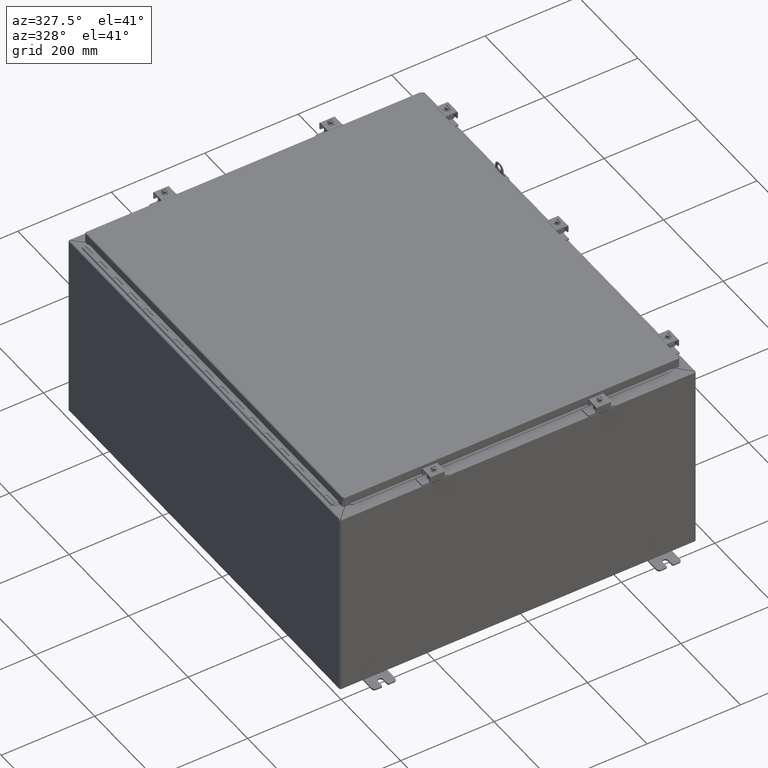
[diagram: clean part render]
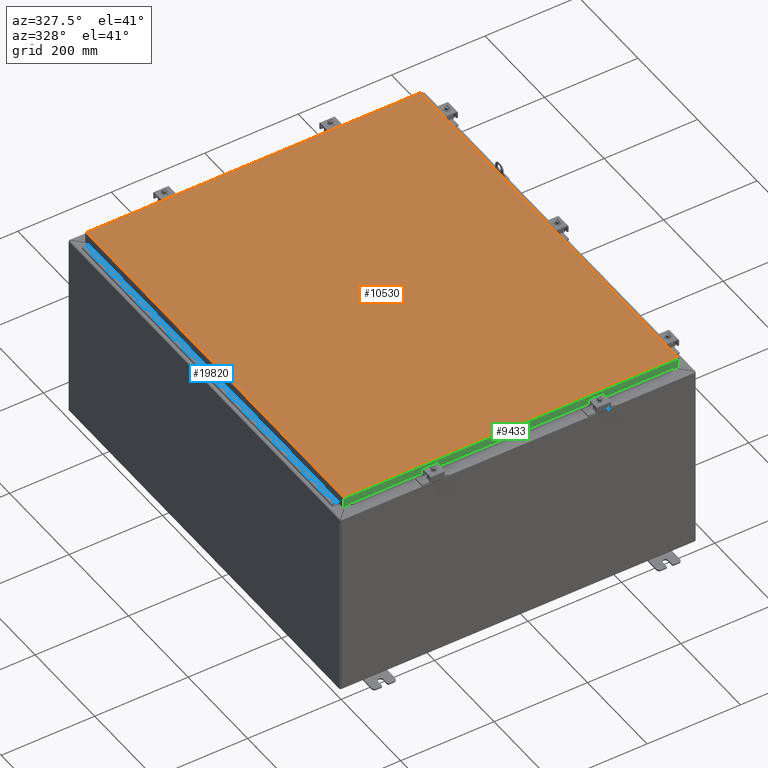
[diagram: same view with three faces highlighted in distinct colors, each labeled with its STEP entity id]
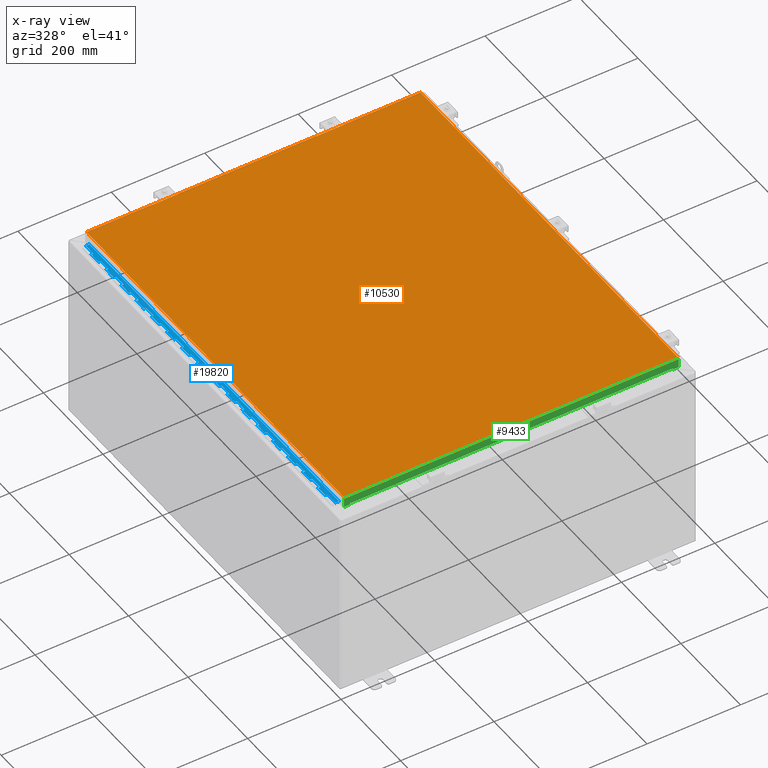
[diagram: x-ray of the same camera — body ghosted, the three highlighted faces saturated]
A machine part, auxiliary view with three faces highlighted in distinct colors.
The next image is the same camera in x-ray (body ghosted, the three faces saturated) — at least one of them is partly hidden behind the body in this view.
Their STEP definitions:

[orange] entity #10530 — the highlighted planar face has unit normal (0, 0, -1).
#9687=CARTESIAN_POINT('',(-14.08225,-16.988500000000005,-2.185478E-017));
#9688=VERTEX_POINT('',#9687);
#9699=CARTESIAN_POINT('',(14.08225,-16.988500000000002,-1.092739E-017));
#9700=VERTEX_POINT('',#9699);
#9701=CARTESIAN_POINT('',(14.08225,-16.988500000000005,0.0));
#9702=DIRECTION('',(-1.0,0.0,0.0));
#9703=VECTOR('',#9702,28.1645);
#9704=LINE('',#9701,#9703);
#9705=EDGE_CURVE('',#9700,#9688,#9704,.T.);
#9821=CARTESIAN_POINT('',(-14.082250000000005,16.988500000000005,-2.185478E-017));
#9822=VERTEX_POINT('',#9821);
#9920=CARTESIAN_POINT('',(14.08225,16.988500000000005,-1.092739E-017));
#9921=VERTEX_POINT('',#9920);
#9932=CARTESIAN_POINT('',(-14.082250000000005,16.988500000000005,0.0));
#9933=DIRECTION('',(1.0,0.0,0.0));
#9934=VECTOR('',#9933,28.164500000000004);
#9935=LINE('',#9932,#9934);
#9936=EDGE_CURVE('',#9822,#9921,#9935,.T.);
#10241=CARTESIAN_POINT('',(-14.082250000000002,-16.988500000000009,0.0));
#10242=DIRECTION('',(0.0,1.0,0.0));
#10243=VECTOR('',#10242,33.977000000000011);
#10244=LINE('',#10241,#10243);
#10245=EDGE_CURVE('',#9688,#9822,#10244,.T.);
#10335=CARTESIAN_POINT('',(14.08225,16.988500000000005,0.0));
#10336=DIRECTION('',(0.0,-1.0,0.0));
#10337=VECTOR('',#10336,33.977000000000004);
#10338=LINE('',#10335,#10337);
#10339=EDGE_CURVE('',#9921,#9700,#10338,.T.);
#10519=CARTESIAN_POINT('',(-6.993531E-016,9.772905E-016,0.0));
#10520=DIRECTION('',(0.0,0.0,1.0));
#10521=DIRECTION('',(1.0,0.0,0.0));
#10522=AXIS2_PLACEMENT_3D('',#10519,#10520,#10521);
#10523=PLANE('',#10522);
#10524=ORIENTED_EDGE('',*,*,#10245,.T.);
#10525=ORIENTED_EDGE('',*,*,#9936,.T.);
#10526=ORIENTED_EDGE('',*,*,#10339,.T.);
#10527=ORIENTED_EDGE('',*,*,#9705,.T.);
#10528=EDGE_LOOP('',(#10524,#10525,#10526,#10527));
#10529=FACE_OUTER_BOUND('',#10528,.T.);
#10530=ADVANCED_FACE('',(#10529),#10523,.F.);

[blue] entity #19820 — the highlighted planar face has unit normal (0.0872, 0, 0.9962).
#16949=CARTESIAN_POINT('',(0.0,-0.125,1.000000000000008));
#16950=VERTEX_POINT('',#16949);
#16960=CARTESIAN_POINT('',(-0.18,-0.125,1.000000000000008));
#16961=VERTEX_POINT('',#16960);
#16962=CARTESIAN_POINT('',(-0.18,-0.125,1.000000000000013));
#16963=DIRECTION('',(1.0,0.0,0.0));
#16964=VECTOR('',#16963,0.18);
#16965=LINE('',#16962,#16964);
#16966=EDGE_CURVE('',#16961,#16950,#16965,.T.);
#17026=CARTESIAN_POINT('',(-0.18,-0.125,0.0));
#17027=VERTEX_POINT('',#17026);
#17041=CARTESIAN_POINT('',(-0.18,-0.125,0.0));
#17042=DIRECTION('',(0.0,0.0,1.0));
#17043=VECTOR('',#17042,1.000000000000008);
#17044=LINE('',#17041,#17043);
#17045=EDGE_CURVE('',#17027,#16961,#17044,.T.);
#17055=CARTESIAN_POINT('',(0.0,-0.125,3.000000000000007));
#17056=VERTEX_POINT('',#17055);
#17066=CARTESIAN_POINT('',(-0.18,-0.125,3.000000000000007));
#17067=VERTEX_POINT('',#17066);
#17068=CARTESIAN_POINT('',(-0.18,-0.125,3.000000000000013));
#17069=DIRECTION('',(1.0,0.0,0.0));
#17070=VECTOR('',#17069,0.18);
#17071=LINE('',#17068,#17070);
#17072=EDGE_CURVE('',#17067,#17056,#17071,.T.);
#17139=CARTESIAN_POINT('',(-0.18,-0.125,1.980000000000012));
#17140=VERTEX_POINT('',#17139);
#17141=CARTESIAN_POINT('',(-0.18,-0.125,1.980000000000012));
#17142=DIRECTION('',(0.0,0.0,1.0));
#17143=VECTOR('',#17142,1.019999999999995);
#17144=LINE('',#17141,#17143);
#17145=EDGE_CURVE('',#17140,#17067,#17144,.T.);
#17163=CARTESIAN_POINT('',(0.0,-0.125,1.980000000000007));
#17164=VERTEX_POINT('',#17163);
#17213=CARTESIAN_POINT('',(0.0,-0.125,1.980000000000012));
#17214=DIRECTION('',(-1.0,0.0,0.0));
#17215=VECTOR('',#17214,0.18);
#17216=LINE('',#17213,#17215);
#17217=EDGE_CURVE('',#17164,#17140,#17216,.T.);
#17227=CARTESIAN_POINT('',(0.0,-0.125,5.000000000000006));
#17228=VERTEX_POINT('',#17227);
#17238=CARTESIAN_POINT('',(-0.18,-0.125,5.000000000000007));
#17239=VERTEX_POINT('',#17238);
#17240=CARTESIAN_POINT('',(-0.18,-0.125,5.000000000000012));
#17241=DIRECTION('',(1.0,0.0,0.0));
#17242=VECTOR('',#17241,0.18);
#17243=LINE('',#17240,#17242);
#17244=EDGE_CURVE('',#17239,#17228,#17243,.T.);
#17311=CARTESIAN_POINT('',(-0.18,-0.125,3.980000000000012));
#17312=VERTEX_POINT('',#17311);
#17313=CARTESIAN_POINT('',(-0.18,-0.125,3.980000000000012));
#17314=DIRECTION('',(0.0,0.0,1.0));
#17315=VECTOR('',#17314,1.019999999999995);
#17316=LINE('',#17313,#17315);
#17317=EDGE_CURVE('',#17312,#17239,#17316,.T.);
#17335=CARTESIAN_POINT('',(0.0,-0.125,3.980000000000006));
#17336=VERTEX_POINT('',#17335);
#17385=CARTESIAN_POINT('',(0.0,-0.125,3.980000000000012));
#17386=DIRECTION('',(-1.0,0.0,0.0));
#17387=VECTOR('',#17386,0.18);
#17388=LINE('',#17385,#17387);
#17389=EDGE_CURVE('',#17336,#17312,#17388,.T.);
#17399=CARTESIAN_POINT('',(0.0,-0.125,7.000000000000006));
#17400=VERTEX_POINT('',#17399);
#17410=CARTESIAN_POINT('',(-0.18,-0.125,7.000000000000006));
#17411=VERTEX_POINT('',#17410);
#17412=CARTESIAN_POINT('',(-0.18,-0.125,7.000000000000012));
#17413=DIRECTION('',(1.0,0.0,0.0));
#17414=VECTOR('',#17413,0.18);
#17415=LINE('',#17412,#17414);
#17416=EDGE_CURVE('',#17411,#17400,#17415,.T.);
#17483=CARTESIAN_POINT('',(-0.18,-0.125,5.980000000000011));
#17484=VERTEX_POINT('',#17483);
#17485=CARTESIAN_POINT('',(-0.18,-0.125,5.980000000000011));
#17486=DIRECTION('',(0.0,0.0,1.0));
#17487=VECTOR('',#17486,1.019999999999995);
#17488=LINE('',#17485,#17487);
#17489=EDGE_CURVE('',#17484,#17411,#17488,.T.);
#17507=CARTESIAN_POINT('',(0.0,-0.125,5.980000000000006));
#17508=VERTEX_POINT('',#17507);
#17557=CARTESIAN_POINT('',(0.0,-0.125,5.980000000000011));
#17558=DIRECTION('',(-1.0,0.0,0.0));
#17559=VECTOR('',#17558,0.18);
#17560=LINE('',#17557,#17559);
#17561=EDGE_CURVE('',#17508,#17484,#17560,.T.);
#17571=CARTESIAN_POINT('',(0.0,-0.125,9.000000000000005));
#17572=VERTEX_POINT('',#17571);
#17582=CARTESIAN_POINT('',(-0.18,-0.125,9.000000000000005));
#17583=VERTEX_POINT('',#17582);
#17584=CARTESIAN_POINT('',(-0.18,-0.125,9.000000000000011));
#17585=DIRECTION('',(1.0,0.0,0.0));
#17586=VECTOR('',#17585,0.18);
#17587=LINE('',#17584,#17586);
#17588=EDGE_CURVE('',#17583,#17572,#17587,.T.);
#17655=CARTESIAN_POINT('',(-0.18,-0.125,7.980000000000011));
#17656=VERTEX_POINT('',#17655);
#17657=CARTESIAN_POINT('',(-0.18,-0.125,7.980000000000011));
#17658=DIRECTION('',(0.0,0.0,1.0));
#17659=VECTOR('',#17658,1.019999999999994);
#17660=LINE('',#17657,#17659);
#17661=EDGE_CURVE('',#17656,#17583,#17660,.T.);
#17679=CARTESIAN_POINT('',(0.0,-0.125,7.980000000000005));
#17680=VERTEX_POINT('',#17679);
#17729=CARTESIAN_POINT('',(0.0,-0.125,7.980000000000011));
#17730=DIRECTION('',(-1.0,0.0,0.0));
#17731=VECTOR('',#17730,0.18);
#17732=LINE('',#17729,#17731);
#17733=EDGE_CURVE('',#17680,#17656,#17732,.T.);
#17743=CARTESIAN_POINT('',(0.0,-0.125,11.000000000000009));
#17744=VERTEX_POINT('',#17743);
#17754=CARTESIAN_POINT('',(-0.18,-0.125,11.000000000000009));
#17755=VERTEX_POINT('',#17754);
#17756=CARTESIAN_POINT('',(-0.18,-0.125,11.000000000000014));
#17757=DIRECTION('',(1.0,0.0,0.0));
#17758=VECTOR('',#17757,0.18);
#17759=LINE('',#17756,#17758);
#17760=EDGE_CURVE('',#17755,#17744,#17759,.T.);
#17827=CARTESIAN_POINT('',(-0.18,-0.125,9.980000000000013));
#17828=VERTEX_POINT('',#17827);
#17829=CARTESIAN_POINT('',(-0.18,-0.125,9.980000000000015));
#17830=DIRECTION('',(0.0,0.0,1.0));
#17831=VECTOR('',#17830,1.019999999999994);
#17832=LINE('',#17829,#17831);
#17833=EDGE_CURVE('',#17828,#17755,#17832,.T.);
#17851=CARTESIAN_POINT('',(0.0,-0.125,9.980000000000009));
#17852=VERTEX_POINT('',#17851);
#17901=CARTESIAN_POINT('',(0.0,-0.125,9.980000000000013));
#17902=DIRECTION('',(-1.0,0.0,0.0));
#17903=VECTOR('',#17902,0.18);
#17904=LINE('',#17901,#17903);
#17905=EDGE_CURVE('',#17852,#17828,#17904,.T.);
#17915=CARTESIAN_POINT('',(0.0,-0.125,13.000000000000007));
#17916=VERTEX_POINT('',#17915);
#17926=CARTESIAN_POINT('',(-0.18,-0.125,13.000000000000007));
#17927=VERTEX_POINT('',#17926);
#17928=CARTESIAN_POINT('',(-0.18,-0.125,13.000000000000012));
#17929=DIRECTION('',(1.0,0.0,0.0));
#17930=VECTOR('',#17929,0.18);
#17931=LINE('',#17928,#17930);
#17932=EDGE_CURVE('',#17927,#17916,#17931,.T.);
#17999=CARTESIAN_POINT('',(-0.18,-0.125,11.980000000000013));
#18000=VERTEX_POINT('',#17999);
#18001=CARTESIAN_POINT('',(-0.18,-0.125,11.980000000000011));
#18002=DIRECTION('',(0.0,0.0,1.0));
#18003=VECTOR('',#18002,1.019999999999996);
#18004=LINE('',#18001,#18003);
#18005=EDGE_CURVE('',#18000,#17927,#18004,.T.);
#18023=CARTESIAN_POINT('',(0.0,-0.125,11.980000000000008));
#18024=VERTEX_POINT('',#18023);
#18073=CARTESIAN_POINT('',(0.0,-0.125,11.980000000000013));
#18074=DIRECTION('',(-1.0,0.0,0.0));
#18075=VECTOR('',#18074,0.18);
#18076=LINE('',#18073,#18075);
#18077=EDGE_CURVE('',#18024,#18000,#18076,.T.);
#18087=CARTESIAN_POINT('',(0.0,-0.125,15.000000000000007));
#18088=VERTEX_POINT('',#18087);
#18098=CARTESIAN_POINT('',(-0.18,-0.125,15.000000000000007));
#18099=VERTEX_POINT('',#18098);
#18100=CARTESIAN_POINT('',(-0.18,-0.125,15.000000000000012));
#18101=DIRECTION('',(1.0,0.0,0.0));
#18102=VECTOR('',#18101,0.18);
#18103=LINE('',#18100,#18102);
#18104=EDGE_CURVE('',#18099,#18088,#18103,.T.);
#18171=CARTESIAN_POINT('',(-0.18,-0.125,13.980000000000011));
#18172=VERTEX_POINT('',#18171);
#18173=CARTESIAN_POINT('',(-0.18,-0.125,13.980000000000011));
#18174=DIRECTION('',(0.0,0.0,1.0));
#18175=VECTOR('',#18174,1.019999999999996);
#18176=LINE('',#18173,#18175);
#18177=EDGE_CURVE('',#18172,#18099,#18176,.T.);
#18195=CARTESIAN_POINT('',(0.0,-0.125,13.980000000000006));
#18196=VERTEX_POINT('',#18195);
#18245=CARTESIAN_POINT('',(0.0,-0.125,13.980000000000011));
#18246=DIRECTION('',(-1.0,0.0,0.0));
#18247=VECTOR('',#18246,0.18);
#18248=LINE('',#18245,#18247);
#18249=EDGE_CURVE('',#18196,#18172,#18248,.T.);
#18259=CARTESIAN_POINT('',(0.0,-0.125,17.000000000000007));
#18260=VERTEX_POINT('',#18259);
#18270=CARTESIAN_POINT('',(-0.18,-0.125,17.000000000000007));
#18271=VERTEX_POINT('',#18270);
#18272=CARTESIAN_POINT('',(-0.18,-0.125,17.000000000000011));
#18273=DIRECTION('',(1.0,0.0,0.0));
#18274=VECTOR('',#18273,0.18);
#18275=LINE('',#18272,#18274);
#18276=EDGE_CURVE('',#18271,#18260,#18275,.T.);
#18343=CARTESIAN_POINT('',(-0.18,-0.125,15.980000000000011));
#18344=VERTEX_POINT('',#18343);
#18345=CARTESIAN_POINT('',(-0.18,-0.125,15.980000000000011));
#18346=DIRECTION('',(0.0,0.0,1.0));
#18347=VECTOR('',#18346,1.019999999999996);
#18348=LINE('',#18345,#18347);
#18349=EDGE_CURVE('',#18344,#18271,#18348,.T.);
#18367=CARTESIAN_POINT('',(0.0,-0.125,15.980000000000006));
#18368=VERTEX_POINT('',#18367);
#18417=CARTESIAN_POINT('',(-6.162976E-033,-0.125,15.980000000000011));
#18418=DIRECTION('',(-1.0,0.0,0.0));
#18419=VECTOR('',#18418,0.18);
#18420=LINE('',#18417,#18419);
#18421=EDGE_CURVE('',#18368,#18344,#18420,.T.);
#18431=CARTESIAN_POINT('',(0.0,-0.125,19.000000000000007));
#18432=VERTEX_POINT('',#18431);
#18442=CARTESIAN_POINT('',(-0.18,-0.125,19.000000000000007));
#18443=VERTEX_POINT('',#18442);
#18444=CARTESIAN_POINT('',(-0.18,-0.125,19.000000000000011));
#18445=DIRECTION('',(1.0,0.0,0.0));
#18446=VECTOR('',#18445,0.18);
#18447=LINE('',#18444,#18446);
#18448=EDGE_CURVE('',#18443,#18432,#18447,.T.);
#18515=CARTESIAN_POINT('',(-0.18,-0.125,17.980000000000011));
#18516=VERTEX_POINT('',#18515);
#18517=CARTESIAN_POINT('',(-0.18,-0.125,17.980000000000011));
#18518=DIRECTION('',(0.0,0.0,1.0));
#18519=VECTOR('',#18518,1.019999999999996);
#18520=LINE('',#18517,#18519);
#18521=EDGE_CURVE('',#18516,#18443,#18520,.T.);
#18539=CARTESIAN_POINT('',(0.0,-0.125,17.980000000000004));
#18540=VERTEX_POINT('',#18539);
#18589=CARTESIAN_POINT('',(-3.081488E-033,-0.125,17.980000000000011));
#18590=DIRECTION('',(-1.0,0.0,0.0));
#18591=VECTOR('',#18590,0.18);
#18592=LINE('',#18589,#18591);
#18593=EDGE_CURVE('',#18540,#18516,#18592,.T.);
#18603=CARTESIAN_POINT('',(0.0,-0.125,21.000000000000007));
#18604=VERTEX_POINT('',#18603);
#18614=CARTESIAN_POINT('',(-0.18,-0.125,21.000000000000007));
#18615=VERTEX_POINT('',#18614);
#18616=CARTESIAN_POINT('',(-0.18,-0.125,21.000000000000011));
#18617=DIRECTION('',(1.0,0.0,0.0));
#18618=VECTOR('',#18617,0.18);
#18619=LINE('',#18616,#18618);
#18620=EDGE_CURVE('',#18615,#18604,#18619,.T.);
#18687=CARTESIAN_POINT('',(-0.18,-0.125,19.980000000000011));
#18688=VERTEX_POINT('',#18687);
#18689=CARTESIAN_POINT('',(-0.18,-0.125,19.980000000000011));
#18690=DIRECTION('',(0.0,0.0,1.0));
#18691=VECTOR('',#18690,1.019999999999996);
#18692=LINE('',#18689,#18691);
#18693=EDGE_CURVE('',#18688,#18615,#18692,.T.);
#18711=CARTESIAN_POINT('',(0.0,-0.125,19.980000000000004));
#18712=VERTEX_POINT('',#18711);
#18761=CARTESIAN_POINT('',(-3.081488E-033,-0.125,19.980000000000011));
#18762=DIRECTION('',(-1.0,0.0,0.0));
#18763=VECTOR('',#18762,0.18);
#18764=LINE('',#18761,#18763);
#18765=EDGE_CURVE('',#18712,#18688,#18764,.T.);
#18775=CARTESIAN_POINT('',(0.0,-0.125,23.000000000000007));
#18776=VERTEX_POINT('',#18775);
#18786=CARTESIAN_POINT('',(-0.18,-0.125,23.000000000000007));
#18787=VERTEX_POINT('',#18786);
#18788=CARTESIAN_POINT('',(-0.18,-0.125,23.000000000000014));
#18789=DIRECTION('',(1.0,0.0,0.0));
#18790=VECTOR('',#18789,0.18);
#18791=LINE('',#18788,#18790);
#18792=EDGE_CURVE('',#18787,#18776,#18791,.T.);
#18859=CARTESIAN_POINT('',(-0.18,-0.125,21.980000000000011));
#18860=VERTEX_POINT('',#18859);
#18861=CARTESIAN_POINT('',(-0.18,-0.125,21.980000000000011));
#18862=DIRECTION('',(0.0,0.0,1.0));
#18863=VECTOR('',#18862,1.019999999999996);
#18864=LINE('',#18861,#18863);
#18865=EDGE_CURVE('',#18860,#18787,#18864,.T.);
#18883=CARTESIAN_POINT('',(0.0,-0.125,21.980000000000004));
#18884=VERTEX_POINT('',#18883);
#18933=CARTESIAN_POINT('',(-6.162976E-033,-0.125,21.980000000000011));
#18934=DIRECTION('',(-1.0,0.0,0.0));
#18935=VECTOR('',#18934,0.18);
#18936=LINE('',#18933,#18935);
#18937=EDGE_CURVE('',#18884,#18860,#18936,.T.);
#18947=CARTESIAN_POINT('',(0.0,-0.125,25.000000000000007));
#18948=VERTEX_POINT('',#18947);
#18958=CARTESIAN_POINT('',(-0.18,-0.125,25.000000000000007));
#18959=VERTEX_POINT('',#18958);
#18960=CARTESIAN_POINT('',(-0.18,-0.125,25.000000000000014));
#18961=DIRECTION('',(1.0,0.0,0.0));
#18962=VECTOR('',#18961,0.18);
#18963=LINE('',#18960,#18962);
#18964=EDGE_CURVE('',#18959,#18948,#18963,.T.);
#19031=CARTESIAN_POINT('',(-0.18,-0.125,23.980000000000011));
#19032=VERTEX_POINT('',#19031);
#19033=CARTESIAN_POINT('',(-0.18,-0.125,23.980000000000011));
#19034=DIRECTION('',(0.0,0.0,1.0));
#19035=VECTOR('',#19034,1.019999999999996);
#19036=LINE('',#19033,#19035);
#19037=EDGE_CURVE('',#19032,#18959,#19036,.T.);
#19055=CARTESIAN_POINT('',(0.0,-0.125,23.980000000000008));
#19056=VERTEX_POINT('',#19055);
#19105=CARTESIAN_POINT('',(-6.162976E-033,-0.125,23.980000000000011));
#19106=DIRECTION('',(-1.0,0.0,0.0));
#19107=VECTOR('',#19106,0.18);
#19108=LINE('',#19105,#19107);
#19109=EDGE_CURVE('',#19056,#19032,#19108,.T.);
#19119=CARTESIAN_POINT('',(0.0,-0.125,27.000000000000007));
#19120=VERTEX_POINT('',#19119);
#19130=CARTESIAN_POINT('',(-0.18,-0.125,27.000000000000007));
#19131=VERTEX_POINT('',#19130);
#19132=CARTESIAN_POINT('',(-0.18,-0.125,27.000000000000011));
#19133=DIRECTION('',(1.0,0.0,0.0));
#19134=VECTOR('',#19133,0.18);
#19135=LINE('',#19132,#19134);
#19136=EDGE_CURVE('',#19131,#19120,#19135,.T.);
#19203=CARTESIAN_POINT('',(-0.18,-0.125,25.980000000000011));
#19204=VERTEX_POINT('',#19203);
#19205=CARTESIAN_POINT('',(-0.18,-0.125,25.980000000000011));
#19206=DIRECTION('',(0.0,0.0,1.0));
#19207=VECTOR('',#19206,1.019999999999996);
#19208=LINE('',#19205,#19207);
#19209=EDGE_CURVE('',#19204,#19131,#19208,.T.);
#19227=CARTESIAN_POINT('',(0.0,-0.125,25.980000000000008));
#19228=VERTEX_POINT('',#19227);
#19277=CARTESIAN_POINT('',(-3.081488E-033,-0.125,25.980000000000011));
#19278=DIRECTION('',(-1.0,0.0,0.0));
#19279=VECTOR('',#19278,0.18);
#19280=LINE('',#19277,#19279);
#19281=EDGE_CURVE('',#19228,#19204,#19280,.T.);
#19291=CARTESIAN_POINT('',(0.0,-0.125,29.000000000000007));
#19292=VERTEX_POINT('',#19291);
#19302=CARTESIAN_POINT('',(-0.18,-0.125,29.000000000000007));
#19303=VERTEX_POINT('',#19302);
#19304=CARTESIAN_POINT('',(-0.18,-0.125,29.000000000000011));
#19305=DIRECTION('',(1.0,0.0,0.0));
#19306=VECTOR('',#19305,0.18);
#19307=LINE('',#19304,#19306);
#19308=EDGE_CURVE('',#19303,#19292,#19307,.T.);
#19375=CARTESIAN_POINT('',(-0.18,-0.125,27.980000000000011));
#19376=VERTEX_POINT('',#19375);
#19377=CARTESIAN_POINT('',(-0.18,-0.125,27.980000000000011));
#19378=DIRECTION('',(0.0,0.0,1.0));
#19379=VECTOR('',#19378,1.019999999999996);
#19380=LINE('',#19377,#19379);
#19381=EDGE_CURVE('',#19376,#19303,#19380,.T.);
#19399=CARTESIAN_POINT('',(0.0,-0.125,27.980000000000004));
#19400=VERTEX_POINT('',#19399);
#19449=CARTESIAN_POINT('',(-6.162976E-033,-0.125,27.980000000000011));
#19450=DIRECTION('',(-1.0,0.0,0.0));
#19451=VECTOR('',#19450,0.18);
#19452=LINE('',#19449,#19451);
#19453=EDGE_CURVE('',#19400,#19376,#19452,.T.);
#19463=CARTESIAN_POINT('',(0.0,-0.125,31.000000000000007));
#19464=VERTEX_POINT('',#19463);
#19474=CARTESIAN_POINT('',(-0.18,-0.125,31.000000000000007));
#19475=VERTEX_POINT('',#19474);
#19476=CARTESIAN_POINT('',(-0.18,-0.125,31.000000000000011));
#19477=DIRECTION('',(1.0,0.0,0.0));
#19478=VECTOR('',#19477,0.18);
#19479=LINE('',#19476,#19478);
#19480=EDGE_CURVE('',#19475,#19464,#19479,.T.);
#19547=CARTESIAN_POINT('',(-0.18,-0.125,29.980000000000011));
#19548=VERTEX_POINT('',#19547);
#19549=CARTESIAN_POINT('',(-0.18,-0.125,29.980000000000011));
#19550=DIRECTION('',(0.0,0.0,1.0));
#19551=VECTOR('',#19550,1.019999999999996);
#19552=LINE('',#19549,#19551);
#19553=EDGE_CURVE('',#19548,#19475,#19552,.T.);
#19571=CARTESIAN_POINT('',(0.0,-0.125,29.980000000000004));
#19572=VERTEX_POINT('',#19571);
#19621=CARTESIAN_POINT('',(-3.081488E-033,-0.125,29.980000000000011));
#19622=DIRECTION('',(-1.0,0.0,0.0));
#19623=VECTOR('',#19622,0.18);
#19624=LINE('',#19621,#19623);
#19625=EDGE_CURVE('',#19572,#19548,#19624,.T.);
#19630=CARTESIAN_POINT('',(1.530808E-017,-0.125,0.0));
#19631=DIRECTION('',(0.0,-1.0,0.0));
#19632=DIRECTION('',(0.0,0.0,-1.0));
#19633=AXIS2_PLACEMENT_3D('',#19630,#19631,#19632);
#19634=PLANE('',#19633);
#19635=ORIENTED_EDGE('',*,*,#17045,.T.);
#19636=ORIENTED_EDGE('',*,*,#16966,.T.);
#19637=CARTESIAN_POINT('',(1.530808E-017,-0.125,1.000000000000008));
#19638=DIRECTION('',(0.0,0.0,1.0));
#19639=VECTOR('',#19638,0.979999999999999);
#19640=LINE('',#19637,#19639);
#19641=EDGE_CURVE('',#16950,#17164,#19640,.T.);
#19642=ORIENTED_EDGE('',*,*,#19641,.T.);
#19643=ORIENTED_EDGE('',*,*,#17217,.T.);
#19644=ORIENTED_EDGE('',*,*,#17145,.T.);
#19645=ORIENTED_EDGE('',*,*,#17072,.T.);
#19646=CARTESIAN_POINT('',(1.530808E-017,-0.125,3.000000000000007));
#19647=DIRECTION('',(0.0,0.0,1.0));
#19648=VECTOR('',#19647,0.979999999999999);
#19649=LINE('',#19646,#19648);
#19650=EDGE_CURVE('',#17056,#17336,#19649,.T.);
#19651=ORIENTED_EDGE('',*,*,#19650,.T.);
#19652=ORIENTED_EDGE('',*,*,#17389,.T.);
#19653=ORIENTED_EDGE('',*,*,#17317,.T.);
#19654=ORIENTED_EDGE('',*,*,#17244,.T.);
#19655=CARTESIAN_POINT('',(1.530808E-017,-0.125,5.000000000000006));
#19656=DIRECTION('',(0.0,0.0,1.0));
#19657=VECTOR('',#19656,0.98);
#19658=LINE('',#19655,#19657);
#19659=EDGE_CURVE('',#17228,#17508,#19658,.T.);
#19660=ORIENTED_EDGE('',*,*,#19659,.T.);
#19661=ORIENTED_EDGE('',*,*,#17561,.T.);
#19662=ORIENTED_EDGE('',*,*,#17489,.T.);
#19663=ORIENTED_EDGE('',*,*,#17416,.T.);
#19664=CARTESIAN_POINT('',(1.530808E-017,-0.125,7.000000000000006));
#19665=DIRECTION('',(0.0,0.0,1.0));
#19666=VECTOR('',#19665,0.979999999999999);
#19667=LINE('',#19664,#19666);
#19668=EDGE_CURVE('',#17400,#17680,#19667,.T.);
#19669=ORIENTED_EDGE('',*,*,#19668,.T.);
#19670=ORIENTED_EDGE('',*,*,#17733,.T.);
#19671=ORIENTED_EDGE('',*,*,#17661,.T.);
#19672=ORIENTED_EDGE('',*,*,#17588,.T.);
#19673=CARTESIAN_POINT('',(1.530808E-017,-0.125,9.000000000000005));
#19674=DIRECTION('',(0.0,0.0,1.0));
#19675=VECTOR('',#19674,0.980000000000004);
#19676=LINE('',#19673,#19675);
#19677=EDGE_CURVE('',#17572,#17852,#19676,.T.);
#19678=ORIENTED_EDGE('',*,*,#19677,.T.);
#19679=ORIENTED_EDGE('',*,*,#17905,.T.);
#19680=ORIENTED_EDGE('',*,*,#17833,.T.);
#19681=ORIENTED_EDGE('',*,*,#17760,.T.);
#19682=CARTESIAN_POINT('',(1.530808E-017,-0.125,11.000000000000009));
#19683=DIRECTION('',(0.0,0.0,1.0));
#19684=VECTOR('',#19683,0.979999999999999);
#19685=LINE('',#19682,#19684);
#19686=EDGE_CURVE('',#17744,#18024,#19685,.T.);
#19687=ORIENTED_EDGE('',*,*,#19686,.T.);
#19688=ORIENTED_EDGE('',*,*,#18077,.T.);
#19689=ORIENTED_EDGE('',*,*,#18005,.T.);
#19690=ORIENTED_EDGE('',*,*,#17932,.T.);
#19691=CARTESIAN_POINT('',(1.530808E-017,-0.125,13.000000000000007));
#19692=DIRECTION('',(0.0,0.0,1.0));
#19693=VECTOR('',#19692,0.979999999999999);
#19694=LINE('',#19691,#19693);
#19695=EDGE_CURVE('',#17916,#18196,#19694,.T.);
#19696=ORIENTED_EDGE('',*,*,#19695,.T.);
#19697=ORIENTED_EDGE('',*,*,#18249,.T.);
#19698=ORIENTED_EDGE('',*,*,#18177,.T.);
#19699=ORIENTED_EDGE('',*,*,#18104,.T.);
#19700=CARTESIAN_POINT('',(1.530808E-017,-0.125,15.000000000000007));
#19701=DIRECTION('',(0.0,0.0,1.0));
#19702=VECTOR('',#19701,0.979999999999999);
#19703=LINE('',#19700,#19702);
#19704=EDGE_CURVE('',#18088,#18368,#19703,.T.);
#19705=ORIENTED_EDGE('',*,*,#19704,.T.);
#19706=ORIENTED_EDGE('',*,*,#18421,.T.);
#19707=ORIENTED_EDGE('',*,*,#18349,.T.);
#19708=ORIENTED_EDGE('',*,*,#18276,.T.);
#19709=CARTESIAN_POINT('',(1.530808E-017,-0.125,17.000000000000007));
#19710=DIRECTION('',(0.0,0.0,1.0));
#19711=VECTOR('',#19710,0.979999999999997);
#19712=LINE('',#19709,#19711);
#19713=EDGE_CURVE('',#18260,#18540,#19712,.T.);
#19714=ORIENTED_EDGE('',*,*,#19713,.T.);
#19715=ORIENTED_EDGE('',*,*,#18593,.T.);
#19716=ORIENTED_EDGE('',*,*,#18521,.T.);
#19717=ORIENTED_EDGE('',*,*,#18448,.T.);
#19718=CARTESIAN_POINT('',(1.530808E-017,-0.125,19.000000000000007));
#19719=DIRECTION('',(0.0,0.0,1.0));
#19720=VECTOR('',#19719,0.979999999999997);
#19721=LINE('',#19718,#19720);
#19722=EDGE_CURVE('',#18432,#18712,#19721,.T.);
#19723=ORIENTED_EDGE('',*,*,#19722,.T.);
#19724=ORIENTED_EDGE('',*,*,#18765,.T.);
#19725=ORIENTED_EDGE('',*,*,#18693,.T.);
#19726=ORIENTED_EDGE('',*,*,#18620,.T.);
#19727=CARTESIAN_POINT('',(1.530808E-017,-0.125,21.000000000000007));
#19728=DIRECTION('',(0.0,0.0,1.0));
#19729=VECTOR('',#19728,0.979999999999997);
#19730=LINE('',#19727,#19729);
#19731=EDGE_CURVE('',#18604,#18884,#19730,.T.);
#19732=ORIENTED_EDGE('',*,*,#19731,.T.);
#19733=ORIENTED_EDGE('',*,*,#18937,.T.);
#19734=ORIENTED_EDGE('',*,*,#18865,.T.);
#19735=ORIENTED_EDGE('',*,*,#18792,.T.);
#19736=CARTESIAN_POINT('',(1.530808E-017,-0.125,23.000000000000007));
#19737=DIRECTION('',(0.0,0.0,1.0));
#19738=VECTOR('',#19737,0.98);
#19739=LINE('',#19736,#19738);
#19740=EDGE_CURVE('',#18776,#19056,#19739,.T.);
#19741=ORIENTED_EDGE('',*,*,#19740,.T.);
#19742=ORIENTED_EDGE('',*,*,#19109,.T.);
#19743=ORIENTED_EDGE('',*,*,#19037,.T.);
#19744=ORIENTED_EDGE('',*,*,#18964,.T.);
#19745=CARTESIAN_POINT('',(1.530808E-017,-0.125,25.000000000000007));
#19746=DIRECTION('',(0.0,0.0,1.0));
#19747=VECTOR('',#19746,0.98);
#19748=LINE('',#19745,#19747);
#19749=EDGE_CURVE('',#18948,#19228,#19748,.T.);
#19750=ORIENTED_EDGE('',*,*,#19749,.T.);
#19751=ORIENTED_EDGE('',*,*,#19281,.T.);
#19752=ORIENTED_EDGE('',*,*,#19209,.T.);
#19753=ORIENTED_EDGE('',*,*,#19136,.T.);
#19754=CARTESIAN_POINT('',(1.530808E-017,-0.125,27.000000000000007));
#19755=DIRECTION('',(0.0,0.0,1.0));
#19756=VECTOR('',#19755,0.979999999999997);
#19757=LINE('',#19754,#19756);
#19758=EDGE_CURVE('',#19120,#19400,#19757,.T.);
#19759=ORIENTED_EDGE('',*,*,#19758,.T.);
#19760=ORIENTED_EDGE('',*,*,#19453,.T.);
#19761=ORIENTED_EDGE('',*,*,#19381,.T.);
#19762=ORIENTED_EDGE('',*,*,#19308,.T.);
#19763=CARTESIAN_POINT('',(1.530808E-017,-0.125,29.000000000000007));
#19764=DIRECTION('',(0.0,0.0,1.0));
#19765=VECTOR('',#19764,0.979999999999997);
#19766=LINE('',#19763,#19765);
#19767=EDGE_CURVE('',#19292,#19572,#19766,.T.);
#19768=ORIENTED_EDGE('',*,*,#19767,.T.);
#19769=ORIENTED_EDGE('',*,*,#19625,.T.);
#19770=ORIENTED_EDGE('',*,*,#19553,.T.);
#19771=ORIENTED_EDGE('',*,*,#19480,.T.);
#19772=CARTESIAN_POINT('',(0.0,-0.125,31.980000000000004));
#19773=VERTEX_POINT('',#19772);
#19774=CARTESIAN_POINT('',(1.530808E-017,-0.125,31.000000000000007));
#19775=DIRECTION('',(0.0,0.0,1.0));
#19776=VECTOR('',#19775,0.979999999999997);
#19777=LINE('',#19774,#19776);
#19778=EDGE_CURVE('',#19464,#19773,#19777,.T.);
#19779=ORIENTED_EDGE('',*,*,#19778,.T.);
#19780=CARTESIAN_POINT('',(-0.18,-0.125,31.980000000000011));
#19781=VERTEX_POINT('',#19780);
#19782=CARTESIAN_POINT('',(-6.162976E-033,-0.125,31.980000000000011));
#19783=DIRECTION('',(-1.0,0.0,0.0));
#19784=VECTOR('',#19783,0.18);
#19785=LINE('',#19782,#19784);
#19786=EDGE_CURVE('',#19773,#19781,#19785,.T.);
#19787=ORIENTED_EDGE('',*,*,#19786,.T.);
#19788=CARTESIAN_POINT('',(-0.18,-0.125,33.000000000000007));
#19789=VERTEX_POINT('',#19788);
#19790=CARTESIAN_POINT('',(-0.18,-0.125,31.980000000000011));
#19791=DIRECTION('',(0.0,0.0,1.0));
#19792=VECTOR('',#19791,1.019999999999996);
#19793=LINE('',#19790,#19792);
#19794=EDGE_CURVE('',#19781,#19789,#19793,.T.);
#19795=ORIENTED_EDGE('',*,*,#19794,.T.);
#19796=CARTESIAN_POINT('',(-0.511005076730884,-0.125,33.000000000000007));
#19797=VERTEX_POINT('',#19796);
#19798=CARTESIAN_POINT('',(-0.18,-0.125,33.000000000000007));
#19799=DIRECTION('',(-1.0,0.0,0.0));
#19800=VECTOR('',#19799,0.331005076730884);
#19801=LINE('',#19798,#19800);
#19802=EDGE_CURVE('',#19789,#19797,#19801,.T.);
#19803=ORIENTED_EDGE('',*,*,#19802,.T.);
#19804=CARTESIAN_POINT('',(-0.511005076730884,-0.125,0.0));
#19805=VERTEX_POINT('',#19804);
#19806=CARTESIAN_POINT('',(-0.511005076730884,-0.125,0.0));
#19807=DIRECTION('',(0.0,0.0,1.0));
#19808=VECTOR('',#19807,33.000000000000007);
#19809=LINE('',#19806,#19808);
#19810=EDGE_CURVE('',#19805,#19797,#19809,.T.);
#19811=ORIENTED_EDGE('',*,*,#19810,.F.);
#19812=CARTESIAN_POINT('',(-0.511005076730884,-0.125,0.0));
#19813=DIRECTION('',(1.0,0.0,0.0));
#19814=VECTOR('',#19813,0.331005076730884);
#19815=LINE('',#19812,#19814);
#19816=EDGE_CURVE('',#19805,#17027,#19815,.T.);
#19817=ORIENTED_EDGE('',*,*,#19816,.T.);
#19818=EDGE_LOOP('',(#19635,#19636,#19642,#19643,#19644,#19645,#19651,#19652,#19653,#19654,#19660,#19661,#19662,#19663,#19669,#19670,#19671,#19672,#19678,#19679,#19680,#19681,#19687,#19688,#19689,#19690,#19696,#19697,#19698,#19699,#19705,#19706,#19707,#19708,#19714,#19715,#19716,#19717,#19723,#19724,#19725,#19726,#19732,#19733,#19734,#19735,#19741,#19742,#19743,#19744,#19750,#19751,#19752,#19753,#19759,#19760,#19761,#19762,#19768,#19769,#19770,#19771,#19779,#19787,#19795,#19803,#19811,#19817));
#19819=FACE_OUTER_BOUND('',#19818,.T.);
#19820=ADVANCED_FACE('',(#19819),#19634,.T.);

[green] entity #9433 — the highlighted planar face has unit normal (0, 1, 0).
#8330=CARTESIAN_POINT('',(-13.602451456543987,17.093750000000043,0.769749999999993));
#8331=VERTEX_POINT('',#8330);
#8356=CARTESIAN_POINT('',(13.602451456543964,17.093750000000046,0.769749999999993));
#8357=VERTEX_POINT('',#8356);
#8412=CARTESIAN_POINT('',(-13.602451456543985,17.093750000000043,0.769749999999993));
#8413=DIRECTION('',(1.0,0.0,0.0));
#8414=VECTOR('',#8413,27.204902913087949);
#8415=LINE('',#8412,#8414);
#8416=EDGE_CURVE('',#8331,#8357,#8415,.T.);
#9156=CARTESIAN_POINT('',(13.602451456543964,17.093750000000046,0.769549999999993));
#9157=VERTEX_POINT('',#9156);
#9164=CARTESIAN_POINT('',(13.602451456543964,17.093750000000046,0.769749999999993));
#9165=DIRECTION('',(0.0,0.0,-1.0));
#9166=VECTOR('',#9165,0.0002);
#9167=LINE('',#9164,#9166);
#9168=EDGE_CURVE('',#8357,#9157,#9167,.T.);
#9188=CARTESIAN_POINT('',(13.602651456543965,17.093750000000053,0.874999999999994));
#9189=VERTEX_POINT('',#9188);
#9196=CARTESIAN_POINT('',(13.602651456543965,17.093750000000046,0.769549999999993));
#9197=VERTEX_POINT('',#9196);
#9198=CARTESIAN_POINT('',(13.602651456543965,17.093750000000046,0.769549999999993));
#9199=DIRECTION('',(0.0,0.0,1.0));
#9200=VECTOR('',#9199,0.105450000000001);
#9201=LINE('',#9198,#9200);
#9202=EDGE_CURVE('',#9197,#9189,#9201,.T.);
#9225=CARTESIAN_POINT('',(13.602451456543964,17.093750000000043,0.769549999999993));
#9226=DIRECTION('',(1.0,0.0,0.0));
#9227=VECTOR('',#9226,0.000200000000003);
#9228=LINE('',#9225,#9227);
#9229=EDGE_CURVE('',#9157,#9197,#9228,.T.);
#9315=CARTESIAN_POINT('',(-13.602651456543988,17.093750000000043,0.769549999999993));
#9316=VERTEX_POINT('',#9315);
#9323=CARTESIAN_POINT('',(-13.602651456543988,17.09375000000005,0.874999999999994));
#9324=VERTEX_POINT('',#9323);
#9325=CARTESIAN_POINT('',(-13.602651456543988,17.093750000000053,0.874999999999994));
#9326=DIRECTION('',(0.0,0.0,-1.0));
#9327=VECTOR('',#9326,0.105450000000001);
#9328=LINE('',#9325,#9327);
#9329=EDGE_CURVE('',#9324,#9316,#9328,.T.);
#9346=CARTESIAN_POINT('',(-13.602451456543987,17.093750000000043,0.769549999999993));
#9347=VERTEX_POINT('',#9346);
#9348=CARTESIAN_POINT('',(-13.602451456543987,17.093750000000046,0.769549999999993));
#9349=DIRECTION('',(0.0,0.0,1.0));
#9350=VECTOR('',#9349,0.0002);
#9351=LINE('',#9348,#9350);
#9352=EDGE_CURVE('',#9347,#8331,#9351,.T.);
#9371=CARTESIAN_POINT('',(-13.602651456543988,17.093750000000043,0.769549999999993));
#9372=DIRECTION('',(1.0,0.0,0.0));
#9373=VECTOR('',#9372,0.000200000000001);
#9374=LINE('',#9371,#9373);
#9375=EDGE_CURVE('',#9316,#9347,#9374,.T.);
#9381=CARTESIAN_POINT('',(-0.046950708161296,17.093750000000025,0.440146161915871));
#9382=DIRECTION('',(0.0,-1.0,0.0));
#9383=DIRECTION('',(1.0,0.0,0.0));
#9384=AXIS2_PLACEMENT_3D('',#9381,#9382,#9383);
#9385=PLANE('',#9384);
#9386=ORIENTED_EDGE('',*,*,#9202,.T.);
#9387=CARTESIAN_POINT('',(14.102451456543966,17.093750000000053,0.874999999999993));
#9388=VERTEX_POINT('',#9387);
#9389=CARTESIAN_POINT('',(14.102451456543966,17.093750000000053,0.874999999999993));
#9390=DIRECTION('',(-1.0,0.0,0.0));
#9391=VECTOR('',#9390,0.4998);
#9392=LINE('',#9389,#9391);
#9393=EDGE_CURVE('',#9388,#9189,#9392,.T.);
#9394=ORIENTED_EDGE('',*,*,#9393,.F.);
#9395=CARTESIAN_POINT('',(14.102451456543966,17.093750000000004,0.105249999999996));
#9396=VERTEX_POINT('',#9395);
#9397=CARTESIAN_POINT('',(14.102451456543966,17.093750000000004,0.105249999999996));
#9398=DIRECTION('',(0.0,0.0,1.0));
#9399=VECTOR('',#9398,0.769749999999998);
#9400=LINE('',#9397,#9399);
#9401=EDGE_CURVE('',#9396,#9388,#9400,.T.);
#9402=ORIENTED_EDGE('',*,*,#9401,.F.);
#9403=CARTESIAN_POINT('',(-14.102451456543951,17.093750000000004,0.105249999999994));
#9404=VERTEX_POINT('',#9403);
#9405=CARTESIAN_POINT('',(14.102451456543962,17.093750000000004,0.10524999999999));
#9406=DIRECTION('',(-1.0,0.0,0.0));
#9407=VECTOR('',#9406,28.204902913087913);
#9408=LINE('',#9405,#9407);
#9409=EDGE_CURVE('',#9396,#9404,#9408,.T.);
#9410=ORIENTED_EDGE('',*,*,#9409,.T.);
#9411=CARTESIAN_POINT('',(-14.102451456543989,17.09375000000005,0.874999999999994));
#9412=VERTEX_POINT('',#9411);
#9413=CARTESIAN_POINT('',(-14.10245145654399,17.093750000000053,0.874999999999994));
#9414=DIRECTION('',(0.0,0.0,-1.0));
#9415=VECTOR('',#9414,0.76975);
#9416=LINE('',#9413,#9415);
#9417=EDGE_CURVE('',#9412,#9404,#9416,.T.);
#9418=ORIENTED_EDGE('',*,*,#9417,.F.);
#9419=CARTESIAN_POINT('',(-13.602651456543986,17.093750000000053,0.874999999999993));
#9420=DIRECTION('',(-1.0,0.0,0.0));
#9421=VECTOR('',#9420,0.4998);
#9422=LINE('',#9419,#9421);
#9423=EDGE_CURVE('',#9324,#9412,#9422,.T.);
#9424=ORIENTED_EDGE('',*,*,#9423,.F.);
#9425=ORIENTED_EDGE('',*,*,#9329,.T.);
#9426=ORIENTED_EDGE('',*,*,#9375,.T.);
#9427=ORIENTED_EDGE('',*,*,#9352,.T.);
#9428=ORIENTED_EDGE('',*,*,#8416,.T.);
#9429=ORIENTED_EDGE('',*,*,#9168,.T.);
#9430=ORIENTED_EDGE('',*,*,#9229,.T.);
#9431=EDGE_LOOP('',(#9386,#9394,#9402,#9410,#9418,#9424,#9425,#9426,#9427,#9428,#9429,#9430));
#9432=FACE_OUTER_BOUND('',#9431,.T.);
#9433=ADVANCED_FACE('',(#9432),#9385,.F.);